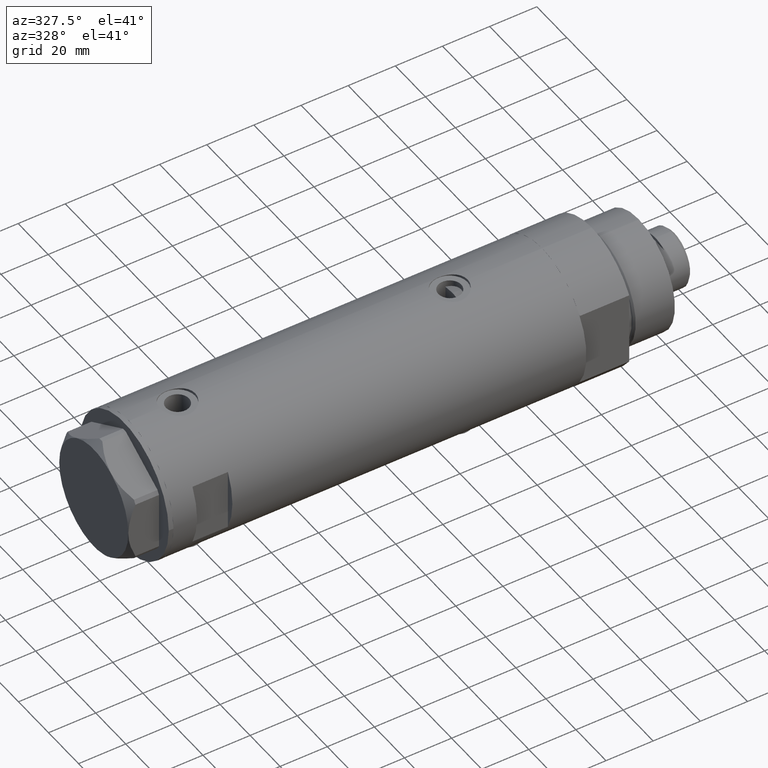
[diagram: clean part render]
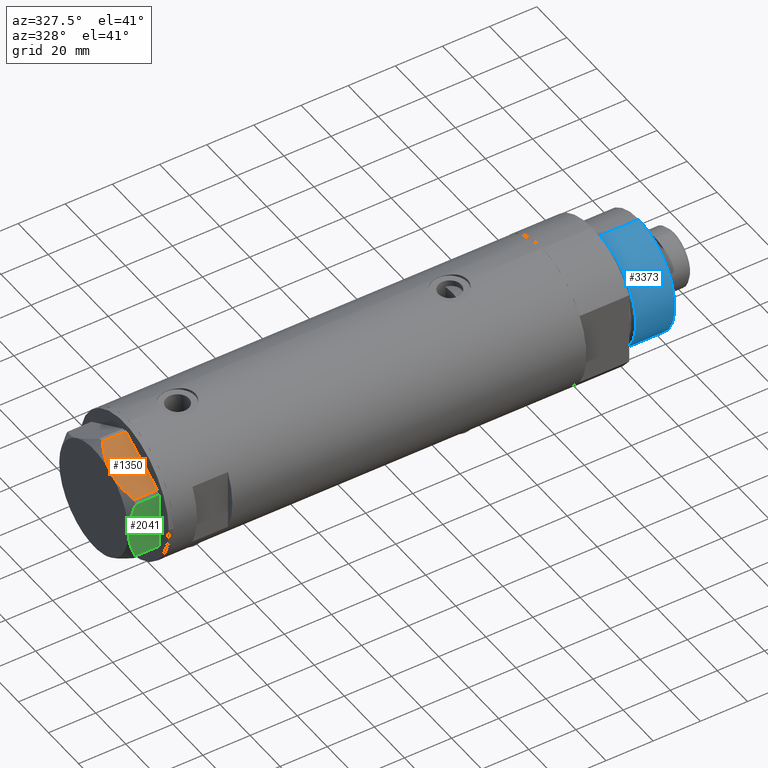
[diagram: same view with three faces highlighted in distinct colors, each labeled with its STEP entity id]
A machine part, auxiliary view with three faces highlighted in distinct colors.
Their STEP definitions:

[orange] entity #1350 — the highlighted planar face has unit normal (-0, 0.5, -0.866).
#18 = PLANE ( 'NONE',  #4318 ) ;
#30 = CARTESIAN_POINT ( 'NONE',  ( -22.99999999999990408, -13.27905619136147841, 0.000000000000000000 ) ) ;
#39 = CARTESIAN_POINT ( 'NONE',  ( -0.9699484522383907681, -25.99811238272274494, 13.00000000000000000 ) ) ;
#281 = B_SPLINE_CURVE_WITH_KNOTS ( 'NONE', 3,
 ( #1668, #4461, #1341, #2985, #4369, #3409, #606, #1007, #2404, #1384 ),
 .UNSPECIFIED., .F., .F.,
 ( 4, 2, 2, 2, 4 ),
 ( 0.01376519981810312224, 0.01998941321701588891, 0.02154546656674407451, 0.02310151991647226705, 0.02621362661592864171 ),
 .UNSPECIFIED. ) ;
#606 = CARTESIAN_POINT ( 'NONE',  ( -3.925137811029895563, -24.29193301091818213, 11.39727285399141365 ) ) ;
#607 = VERTEX_POINT ( 'NONE', #2637 ) ;
#670 = DIRECTION ( 'NONE',  ( -0.8660254037844415942, 0.4999999999999950040, 0.000000000000000000 ) ) ;
#681 = VERTEX_POINT ( 'NONE', #3484 ) ;
#858 = CARTESIAN_POINT ( 'NONE',  ( -13.80210138309694479, -18.58946543380922378, 12.85271263895580418 ) ) ;
#887 = CARTESIAN_POINT ( 'NONE',  ( -12.41906678023023325, -19.38796083407287085, 12.98168640760950865 ) ) ;
#1007 = CARTESIAN_POINT ( 'NONE',  ( -2.640413878806567638, -25.03366871902166935, 10.84420102443839262 ) ) ;
#1081 = CARTESIAN_POINT ( 'NONE',  ( -22.99999999999990408, -13.27905619136147841, 13.00000000000000000 ) ) ;
#1106 = VERTEX_POINT ( 'NONE', #3392 ) ;
#1108 = EDGE_CURVE ( 'NONE', #1106, #681, #281, .T. ) ;
#1202 = VERTEX_POINT ( 'NONE', #3365 ) ;
#1341 = CARTESIAN_POINT ( 'NONE',  ( -7.884645426989515649, -22.00591022298554833, 12.70765172847701052 ) ) ;
#1350 = ADVANCED_FACE ( 'NONE', ( #3094 ), #18, .F. ) ;
#1384 = CARTESIAN_POINT ( 'NONE',  ( -0.9699484522383853280, -25.99811238272275205, 9.983800287807632401 ) ) ;
#1418 = DIRECTION ( 'NONE',  ( 0.8660254037844415942, -0.4999999999999950595, 0.000000000000000000 ) ) ;
#1500 = CARTESIAN_POINT ( 'NONE',  ( -18.67981377008999644, -15.77331687414923422, 11.62937486882610827 ) ) ;
#1668 = CARTESIAN_POINT ( 'NONE',  ( -11.49999999999990585, -19.91858428704219364, 13.00000000000000000 ) ) ;
#1676 = CARTESIAN_POINT ( 'NONE',  ( -11.95865151389046588, -19.65378171203314395, 13.00000000000009948 ) ) ;
#1876 = ORIENTED_EDGE ( 'NONE', *, *, #1108, .F. ) ;
#2048 = DIRECTION ( 'NONE',  ( -0.000000000000000000, 0.000000000000000000, -1.000000000000000000 ) ) ;
#2109 = DIRECTION ( 'NONE',  ( 0.4999999999999950040, 0.8660254037844415942, -0.000000000000000000 ) ) ;
#2110 = VECTOR ( 'NONE', #2048, 1000.000000000000000 ) ;
#2246 = VECTOR ( 'NONE', #1418, 1000.000000000000000 ) ;
#2253 = B_SPLINE_CURVE_WITH_KNOTS ( 'NONE', 3,
 ( #2582, #2561, #1500, #4308, #3920, #858, #3976, #887, #1676, #4425 ),
 .UNSPECIFIED., .F., .F.,
 ( 4, 2, 2, 2, 4 ),
 ( 0.001228959670438515206, 0.007497079744270818830, 0.01063113978118697053, 0.01219816979964504639, 0.01376519981810312224 ),
 .UNSPECIFIED. ) ;
#2260 = CARTESIAN_POINT ( 'NONE',  ( -0.9699484522383873264, -25.99811238272275205, 0.000000000000000000 ) ) ;
#2355 = DIRECTION ( 'NONE',  ( 0.000000000000000000, 0.000000000000000000, 1.000000000000000000 ) ) ;
#2365 = ORIENTED_EDGE ( 'NONE', *, *, #3520, .T. ) ;
#2404 = CARTESIAN_POINT ( 'NONE',  ( -1.799196345396643304, -25.51934588838291162, 10.43131750950939640 ) ) ;
#2446 = VERTEX_POINT ( 'NONE', #2260 ) ;
#2473 = VECTOR ( 'NONE', #2355, 1000.000000000000000 ) ;
#2561 = CARTESIAN_POINT ( 'NONE',  ( -20.37350567916426058, -14.79546339452093662, 10.87778242614345992 ) ) ;
#2582 = CARTESIAN_POINT ( 'NONE',  ( -22.03005154776146313, -13.83905619136139364, 9.983800287807548912 ) ) ;
#2637 = CARTESIAN_POINT ( 'NONE',  ( -22.03005154776146313, -13.83905619136139364, 9.983800287807548912 ) ) ;
#2723 = LINE ( 'NONE', #39, #2473 ) ;
#2747 = EDGE_CURVE ( 'NONE', #2446, #681, #2723, .T. ) ;
#2985 = CARTESIAN_POINT ( 'NONE',  ( -5.671686373602661035, -23.28356272816404271, 12.04068176582933702 ) ) ;
#3085 = CARTESIAN_POINT ( 'NONE',  ( -22.03005154776132102, -13.83905619136147536, 13.00000000000000000 ) ) ;
#3094 = FACE_OUTER_BOUND ( 'NONE', #4194, .T. ) ;
#3102 = LINE ( 'NONE', #30, #2246 ) ;
#3365 = CARTESIAN_POINT ( 'NONE',  ( -22.03005154776132102, -13.83905619136147536, 0.000000000000000000 ) ) ;
#3392 = CARTESIAN_POINT ( 'NONE',  ( -11.49999999999990585, -19.91858428704219364, 13.00000000000000000 ) ) ;
#3409 = CARTESIAN_POINT ( 'NONE',  ( -4.357207709415887642, -24.04247733877630466, 11.57055225522972819 ) ) ;
#3484 = CARTESIAN_POINT ( 'NONE',  ( -0.9699484522383853280, -25.99811238272275205, 9.983800287807632401 ) ) ;
#3520 = EDGE_CURVE ( 'NONE', #1202, #2446, #3102, .T. ) ;
#3624 = ORIENTED_EDGE ( 'NONE', *, *, #4068, .F. ) ;
#3920 = CARTESIAN_POINT ( 'NONE',  ( -15.16323225988328893, -17.80361615569431777, 12.63731396715695077 ) ) ;
#3976 = CARTESIAN_POINT ( 'NONE',  ( -13.34348161667001698, -18.85424967941148822, 12.90784227772843806 ) ) ;
#4068 = EDGE_CURVE ( 'NONE', #607, #1106, #2253, .T. ) ;
#4085 = LINE ( 'NONE', #3085, #2110 ) ;
#4122 = ORIENTED_EDGE ( 'NONE', *, *, #4254, .T. ) ;
#4194 = EDGE_LOOP ( 'NONE', ( #3624, #4122, #2365, #4372, #1876 ) ) ;
#4254 = EDGE_CURVE ( 'NONE', #607, #1202, #4085, .T. ) ;
#4308 = CARTESIAN_POINT ( 'NONE',  ( -16.05322244309625290, -17.28978008384019915, 12.42689993760378542 ) ) ;
#4318 = AXIS2_PLACEMENT_3D ( 'NONE', #1081, #2109, #670 ) ;
#4369 = CARTESIAN_POINT ( 'NONE',  ( -5.229981517797923196, -23.53858114556527781, 11.89212886775844602 ) ) ;
#4372 = ORIENTED_EDGE ( 'NONE', *, *, #2747, .T. ) ;
#4425 = CARTESIAN_POINT ( 'NONE',  ( -11.49999999999990585, -19.91858428704219364, 13.00000000000000000 ) ) ;
#4461 = CARTESIAN_POINT ( 'NONE',  ( -9.678244919010003500, -20.97037507344916563, 13.00000000000009237 ) ) ;

[blue] entity #3373 — the highlighted cylindrical surface (partial cylindrical patch) has radius 24 mm, axis along (-1, -0, 0).
#3 = AXIS2_PLACEMENT_3D ( 'NONE', #3198, #2551, #1182 ) ;
#63 = DIRECTION ( 'NONE',  ( -0.000000000000000000, -0.000000000000000000, -1.000000000000000000 ) ) ;
#84 = EDGE_CURVE ( 'NONE', #1344, #441, #4346, .T. ) ;
#119 = ORIENTED_EDGE ( 'NONE', *, *, #1843, .T. ) ;
#280 = VECTOR ( 'NONE', #1310, 1000.000000000000000 ) ;
#341 = DIRECTION ( 'NONE',  ( -0.000000000000000000, -0.000000000000000000, 1.000000000000000000 ) ) ;
#441 = VERTEX_POINT ( 'NONE', #3921 ) ;
#672 = VERTEX_POINT ( 'NONE', #2770 ) ;
#1009 = AXIS2_PLACEMENT_3D ( 'NONE', #2400, #341, #3459 ) ;
#1149 = CARTESIAN_POINT ( 'NONE',  ( 24.00000000000000355, 2.939152317953648289E-15, 41.00000000000000000 ) ) ;
#1182 = DIRECTION ( 'NONE',  ( 1.000000000000000000, 0.000000000000000000, 0.000000000000000000 ) ) ;
#1217 = CARTESIAN_POINT ( 'NONE',  ( -24.00000000000000355, 0.000000000000000000, 41.00000000000000000 ) ) ;
#1310 = DIRECTION ( 'NONE',  ( -0.000000000000000000, -0.000000000000000000, -1.000000000000000000 ) ) ;
#1344 = VERTEX_POINT ( 'NONE', #3466 ) ;
#1563 = EDGE_CURVE ( 'NONE', #3777, #672, #1780, .T. ) ;
#1722 = VECTOR ( 'NONE', #63, 1000.000000000000000 ) ;
#1780 = LINE ( 'NONE', #3136, #1722 ) ;
#1807 = AXIS2_PLACEMENT_3D ( 'NONE', #3611, #3307, #3587 ) ;
#1843 = EDGE_CURVE ( 'NONE', #441, #672, #4170, .T. ) ;
#1949 = ORIENTED_EDGE ( 'NONE', *, *, #84, .T. ) ;
#2352 = ORIENTED_EDGE ( 'NONE', *, *, #1563, .F. ) ;
#2400 = CARTESIAN_POINT ( 'NONE',  ( 0.000000000000000000, 0.000000000000000000, 24.37384048104054557 ) ) ;
#2408 = ORIENTED_EDGE ( 'NONE', *, *, #2805, .F. ) ;
#2551 = DIRECTION ( 'NONE',  ( 0.000000000000000000, 0.000000000000000000, 1.000000000000000000 ) ) ;
#2770 = CARTESIAN_POINT ( 'NONE',  ( 24.00000000000000355, 2.939152317953648289E-15, 24.37384048104054557 ) ) ;
#2805 = EDGE_CURVE ( 'NONE', #1344, #3777, #3383, .T. ) ;
#3136 = CARTESIAN_POINT ( 'NONE',  ( 24.00000000000000355, 2.939152317953648289E-15, 41.00000000000000000 ) ) ;
#3198 = CARTESIAN_POINT ( 'NONE',  ( 0.000000000000000000, 0.000000000000000000, 41.00000000000000000 ) ) ;
#3213 = FACE_OUTER_BOUND ( 'NONE', #3735, .T. ) ;
#3264 = CYLINDRICAL_SURFACE ( 'NONE', #1807, 24.00000000000000355 ) ;
#3307 = DIRECTION ( 'NONE',  ( -0.000000000000000000, -0.000000000000000000, -1.000000000000000000 ) ) ;
#3373 = ADVANCED_FACE ( 'NONE', ( #3213 ), #3264, .T. ) ;
#3383 = CIRCLE ( 'NONE', #3, 24.00000000000000355 ) ;
#3459 = DIRECTION ( 'NONE',  ( 1.000000000000000000, 0.000000000000000000, 0.000000000000000000 ) ) ;
#3466 = CARTESIAN_POINT ( 'NONE',  ( -24.00000000000000355, 0.000000000000000000, 41.00000000000000000 ) ) ;
#3587 = DIRECTION ( 'NONE',  ( -1.000000000000000000, 0.000000000000000000, 0.000000000000000000 ) ) ;
#3611 = CARTESIAN_POINT ( 'NONE',  ( 0.000000000000000000, 0.000000000000000000, 41.00000000000000000 ) ) ;
#3735 = EDGE_LOOP ( 'NONE', ( #2352, #2408, #1949, #119 ) ) ;
#3777 = VERTEX_POINT ( 'NONE', #1149 ) ;
#3921 = CARTESIAN_POINT ( 'NONE',  ( -24.00000000000000355, 0.000000000000000000, 24.37384048104054557 ) ) ;
#4170 = CIRCLE ( 'NONE', #1009, 24.00000000000000355 ) ;
#4346 = LINE ( 'NONE', #1217, #280 ) ;

[green] entity #2041 — the highlighted planar face has unit normal (-0, 1, -0).
#25 = VERTEX_POINT ( 'NONE', #2259 ) ;
#78 = CARTESIAN_POINT ( 'NONE',  ( -22.99999999999999289, 12.15905619136131754, 0.000000000000000000 ) ) ;
#95 = DIRECTION ( 'NONE',  ( 3.527173405730720141E-15, -1.000000000000000000, 0.000000000000000000 ) ) ;
#116 = CARTESIAN_POINT ( 'NONE',  ( -22.99999999999990763, -11.20155944044818241, 10.42110268263274264 ) ) ;
#173 = FACE_OUTER_BOUND ( 'NONE', #799, .T. ) ;
#239 = CARTESIAN_POINT ( 'NONE',  ( -22.99999999999999645, 13.27905619136132032, 13.00000000000000000 ) ) ;
#261 = PLANE ( 'NONE',  #4104 ) ;
#309 = ORIENTED_EDGE ( 'NONE', *, *, #3799, .T. ) ;
#367 = CARTESIAN_POINT ( 'NONE',  ( -22.99999999999992895, -4.203926054641974552, 12.64168122312250553 ) ) ;
#389 = CARTESIAN_POINT ( 'NONE',  ( -22.99999999999992184, -7.253003311474400583, 11.90327681034764140 ) ) ;
#433 = CARTESIAN_POINT ( 'NONE',  ( -22.99999999999991473, -11.68282849742337248, 10.20637235269541776 ) ) ;
#457 = CARTESIAN_POINT ( 'NONE',  ( -22.99999999999997513, 6.734330413511418811, 12.03938974125266981 ) ) ;
#556 = DIRECTION ( 'NONE',  ( 0.000000000000000000, 0.000000000000000000, -1.000000000000000000 ) ) ;
#709 = CARTESIAN_POINT ( 'NONE',  ( -22.99999999999993250, -5.228918809624134134, 12.43333703384985611 ) ) ;
#710 = VERTEX_POINT ( 'NONE', #3077 ) ;
#771 = CARTESIAN_POINT ( 'NONE',  ( -22.99999999999998579, 10.23890159976121517, 10.84081242829091707 ) ) ;
#779 = LINE ( 'NONE', #2143, #1799 ) ;
#799 = EDGE_LOOP ( 'NONE', ( #3316, #309, #3793, #2732, #3796 ) ) ;
#800 = CARTESIAN_POINT ( 'NONE',  ( -22.99999999999998579, 11.20825071633914582, 10.42817330637845430 ) ) ;
#895 = EDGE_CURVE ( 'NONE', #3482, #1729, #779, .T. ) ;
#915 = CARTESIAN_POINT ( 'NONE',  ( -22.99999999999990763, -12.15905619136148985, 0.000000000000000000 ) ) ;
#1105 = CARTESIAN_POINT ( 'NONE',  ( -22.99999999999999289, 12.15905619136132110, 9.983800287807621743 ) ) ;
#1343 = CARTESIAN_POINT ( 'NONE',  ( -23.00000000000004619, -8.112498833180673323E-14, 13.00000000000000000 ) ) ;
#1437 = EDGE_CURVE ( 'NONE', #1554, #710, #2703, .T. ) ;
#1554 = VERTEX_POINT ( 'NONE', #3487 ) ;
#1575 = LINE ( 'NONE', #2573, #2672 ) ;
#1597 = DIRECTION ( 'NONE',  ( -3.527173405730720929E-15, 1.000000000000000000, 0.000000000000000000 ) ) ;
#1621 = DIRECTION ( 'NONE',  ( 0.000000000000000000, 0.000000000000000000, 1.000000000000000000 ) ) ;
#1729 = VERTEX_POINT ( 'NONE', #915 ) ;
#1798 = CARTESIAN_POINT ( 'NONE',  ( -23.00000000000004619, -8.112498833180673323E-14, 13.00000000000000000 ) ) ;
#1799 = VECTOR ( 'NONE', #95, 1000.000000000000000 ) ;
#1868 = CARTESIAN_POINT ( 'NONE',  ( -22.99999999999996092, 2.122900714018063795, 13.00000000000009592 ) ) ;
#1875 = CARTESIAN_POINT ( 'NONE',  ( -22.99999999999991473, -10.22738952213796715, 10.83247031367477398 ) ) ;
#2037 = CARTESIAN_POINT ( 'NONE',  ( -22.99999999999994316, -1.063773509315741217, 12.98143808360682883 ) ) ;
#2041 = ADVANCED_FACE ( 'NONE', ( #173 ), #261, .F. ) ;
#2080 = CARTESIAN_POINT ( 'NONE',  ( -22.99999999999995381, -0.5295934231897790889, 13.00000000000009237 ) ) ;
#2143 = CARTESIAN_POINT ( 'NONE',  ( -22.99999999999999645, 13.27905619136132032, 0.000000000000000000 ) ) ;
#2181 = CARTESIAN_POINT ( 'NONE',  ( -22.99999999999990763, -12.15905619136149340, 9.983800287807616414 ) ) ;
#2201 = CARTESIAN_POINT ( 'NONE',  ( -22.99999999999996447, 4.194757081058973824, 12.70300035152520302 ) ) ;
#2217 = CARTESIAN_POINT ( 'NONE',  ( -22.99999999999997513, 8.246028007352348865, 11.57113180864690705 ) ) ;
#2259 = CARTESIAN_POINT ( 'NONE',  ( -22.99999999999999289, 12.15905619136132110, 9.983800287807621743 ) ) ;
#2413 = EDGE_CURVE ( 'NONE', #25, #1554, #3361, .T. ) ;
#2463 = EDGE_CURVE ( 'NONE', #1729, #710, #2681, .T. ) ;
#2573 = CARTESIAN_POINT ( 'NONE',  ( -22.99999999999999289, 12.15905619136131754, 13.00000000000000000 ) ) ;
#2672 = VECTOR ( 'NONE', #556, 1000.000000000000000 ) ;
#2681 = LINE ( 'NONE', #4045, #3532 ) ;
#2703 = B_SPLINE_CURVE_WITH_KNOTS ( 'NONE', 3,
 ( #1343, #2080, #2037, #3795, #3433, #367, #709, #389, #3394, #2724, #1875, #116, #433, #2181 ),
 .UNSPECIFIED., .F., .F.,
 ( 4, 2, 2, 2, 2, 2, 4 ),
 ( 0.04777139595992690307, 0.04934380568070230455, 0.05091621540147769909, 0.05406103484302849510, 0.05720585428457929111, 0.05877826400535468565, 0.06035067372613008019 ),
 .UNSPECIFIED. ) ;
#2724 = CARTESIAN_POINT ( 'NONE',  ( -22.99999999999991829, -9.734726261263313418, 11.02892470009565251 ) ) ;
#2732 = ORIENTED_EDGE ( 'NONE', *, *, #2463, .T. ) ;
#3077 = CARTESIAN_POINT ( 'NONE',  ( -22.99999999999990763, -12.15905619136149340, 9.983800287807616414 ) ) ;
#3177 = CARTESIAN_POINT ( 'NONE',  ( -22.99999999999997513, 7.239756182922193695, 11.89218606342285156 ) ) ;
#3316 = ORIENTED_EDGE ( 'NONE', *, *, #2413, .F. ) ;
#3361 = B_SPLINE_CURVE_WITH_KNOTS ( 'NONE', 3,
 ( #1105, #800, #771, #3528, #2217, #3177, #457, #2201, #1868, #1798 ),
 .UNSPECIFIED., .F., .F.,
 ( 4, 2, 2, 2, 4 ),
 ( 0.03516523594057417712, 0.03831677594541236381, 0.03989254594783145369, 0.04146831595025054357, 0.04777139595992690307 ),
 .UNSPECIFIED. ) ;
#3394 = CARTESIAN_POINT ( 'NONE',  ( -22.99999999999992184, -8.252113629125281236, 11.58164206268022234 ) ) ;
#3433 = CARTESIAN_POINT ( 'NONE',  ( -22.99999999999994316, -2.643615312305168441, 12.85430456063626714 ) ) ;
#3482 = VERTEX_POINT ( 'NONE', #78 ) ;
#3487 = CARTESIAN_POINT ( 'NONE',  ( -23.00000000000004619, -8.112498833180673323E-14, 13.00000000000000000 ) ) ;
#3528 = CARTESIAN_POINT ( 'NONE',  ( -22.99999999999997158, 8.748091966971372813, 11.39681897828457302 ) ) ;
#3532 = VECTOR ( 'NONE', #1621, 1000.000000000000000 ) ;
#3657 = DIRECTION ( 'NONE',  ( 1.000000000000000000, 3.527173405730720929E-15, -0.000000000000000000 ) ) ;
#3793 = ORIENTED_EDGE ( 'NONE', *, *, #895, .T. ) ;
#3795 = CARTESIAN_POINT ( 'NONE',  ( -22.99999999999993250, -2.119709279061928964, 12.90853521217319688 ) ) ;
#3796 = ORIENTED_EDGE ( 'NONE', *, *, #1437, .F. ) ;
#3799 = EDGE_CURVE ( 'NONE', #25, #3482, #1575, .T. ) ;
#4045 = CARTESIAN_POINT ( 'NONE',  ( -22.99999999999990763, -12.15905619136148985, 13.00000000000000000 ) ) ;
#4104 = AXIS2_PLACEMENT_3D ( 'NONE', #239, #3657, #1597 ) ;